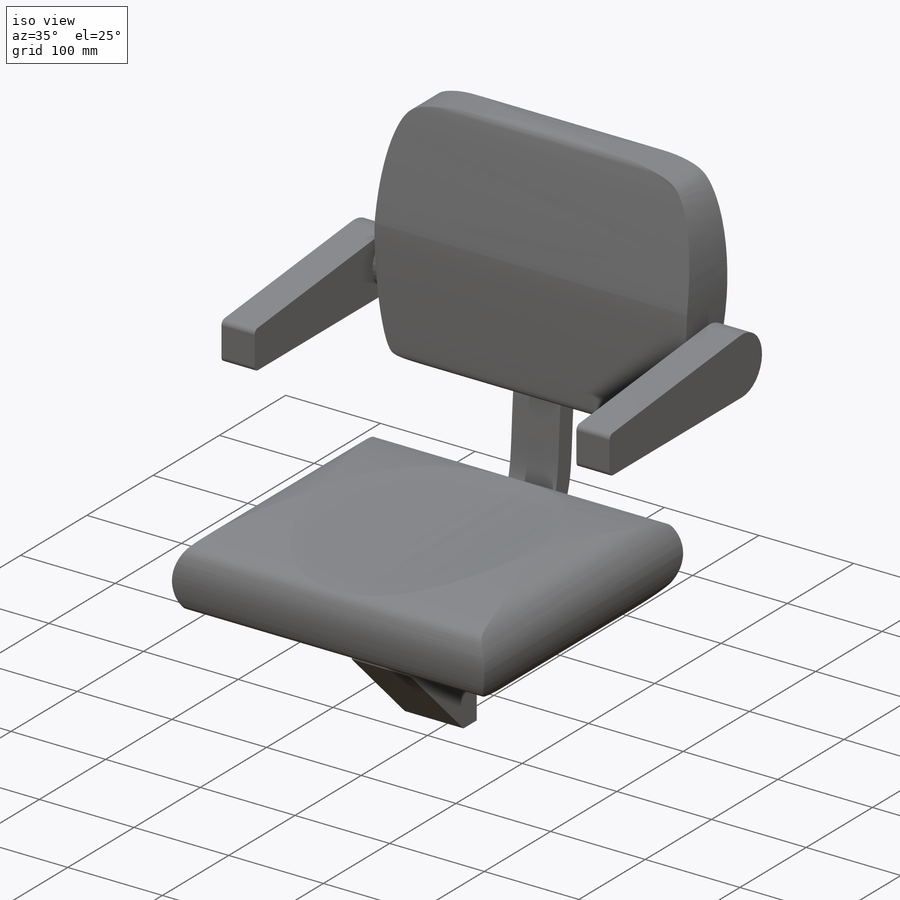
[diagram: iso view]
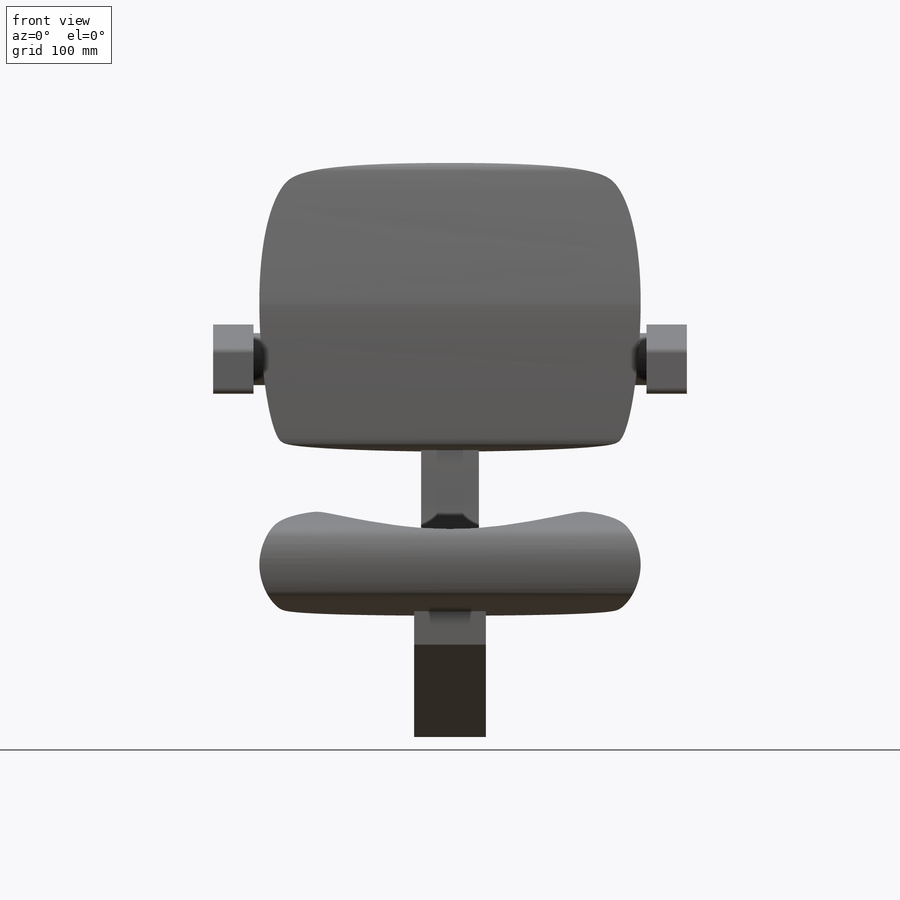
[diagram: front view]
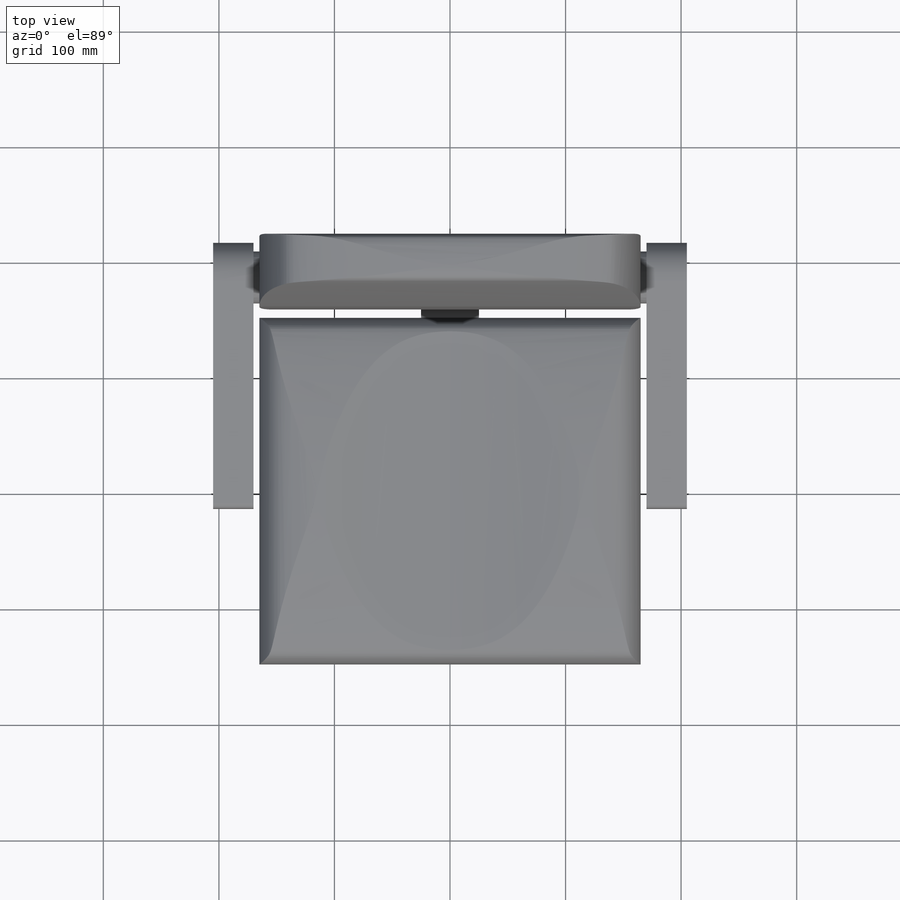
[diagram: top view]
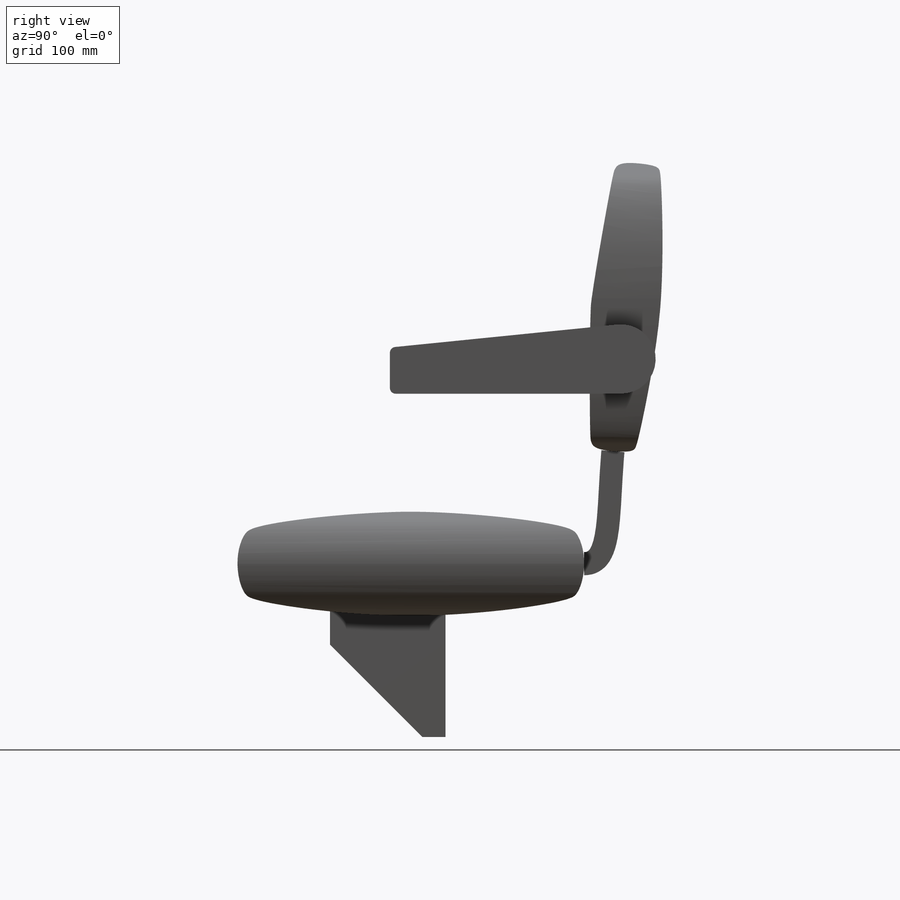
[diagram: right view]
SOLIDWORKS PART (.sldprt)
format: sldprt  version: not decoded by parser v0  size: 403,456 bytes
history: native  units: mm
features: sketch x6, extrude x4, material x1, cut_extrude x1, mirror x1 (+13 scaffold rows collapsed)
feature tree (26):
  scaffold x13  (default folders/planes/origin — collapsed)
  material  "Material <not specified>"
  sketch  "Sketch1"  dims[c1.D1=~49.270057mm c2.D1=95.0deg c2.D2=300.0mm c2.D3=250.0mm c2.D4=90.0mm c2.D5=5.0mm c2.D6=55.0mm c2.D7=60.0mm c2.D8=8.0mm c2.D9=55.0mm c2.D10=8.0mm c2.D11=40.0mm]
  extrude  "Boss-Extrude1"  Depth=330mm
  sketch  "Sketch2"  dims[D1=20.0mm D2=8.0mm D3=15.0mm D4=25.0mm D5=15.0mm D6=115.0mm D7=15.0mm D8=10.0mm D9=20.0mm D10=5.0mm]
  cut_extrude  "Cut-Extrude1"  [1 undecoded]
  sketch  "Sketch3"  dims[D1=50.0mm D5=20.0mm D6=1.0mm D7=5.0mm]
  sketch  "Sketch4"  dims[D1=30.0mm D5=5.0mm D2=200.0mm D3=40.0mm D4=45.0mm]
  extrude  "Boss-Extrude2"  Depth=35mm
  sketch  "Sketch5"  dims[D1=45.0mm]
  extrude  "Boss-Extrude3"  [1 undecoded]
  mirror  "Mirror1"
  sketch  "Sketch6"  dims[D1=30.0mm D2=100.0mm D3=30.0mm D4=120.0mm]
  extrude  "Boss-Extrude4"  Depth=62mm
decode coverage: 9 of 12 modeling features carry decoded parameters
note: ~ marks probable driven/reference dimensions
note: 2 parameter values undecoded
note: suppression state not decoded; provenance and decode notes live in map.json
